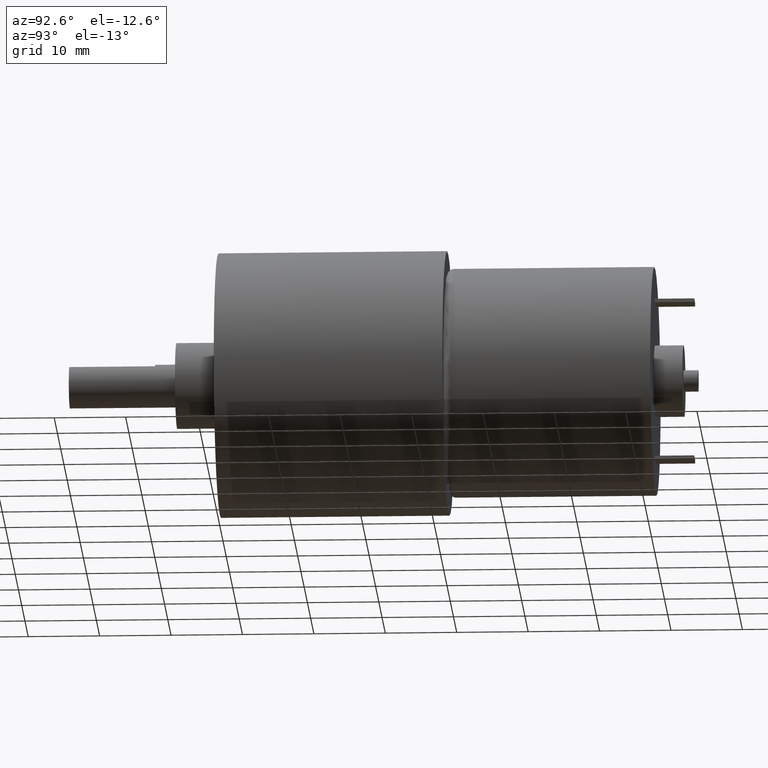
[diagram: clean part render]
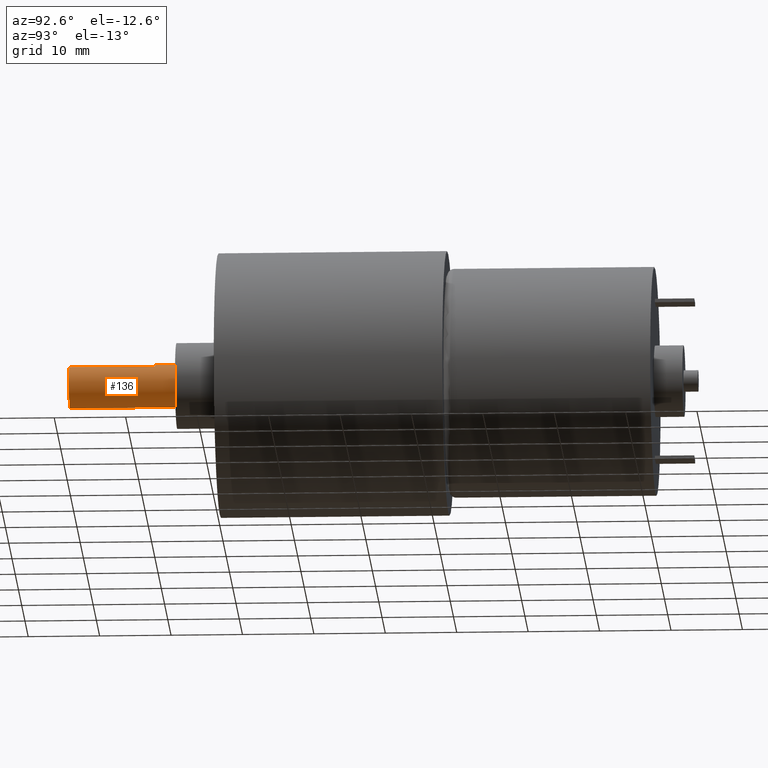
[diagram: same view with one face highlighted and labeled with its STEP entity id]
A machine part, auxiliary view. The second image highlights one B-rep face of the part: STEP entity #136.
In plain terms, the highlighted cylindrical surface (bore or boss wall) has radius 3 mm, axis along (-0, -1, 0).
Its self-contained STEP definition (entity closure, byte-faithful):
#136 = ADVANCED_FACE( '', ( #291, #292 ), #293, .T. );
#291 = FACE_OUTER_BOUND( '', #438, .T. );
#292 = FACE_OUTER_BOUND( '', #439, .T. );
#293 = CYLINDRICAL_SURFACE( '', #440, 3.00000000000000 );
#438 = EDGE_LOOP( '', ( #694, #695, #696, #697 ) );
#439 = EDGE_LOOP( '', ( #698 ) );
#440 = AXIS2_PLACEMENT_3D( '', #699, #700, #701 );
#694 = ORIENTED_EDGE( '', *, *, #788, .T. );
#695 = ORIENTED_EDGE( '', *, *, #769, .F. );
#696 = ORIENTED_EDGE( '', *, *, #783, .F. );
#697 = ORIENTED_EDGE( '', *, *, #767, .T. );
#698 = ORIENTED_EDGE( '', *, *, #709, .F. );
#699 = CARTESIAN_POINT( '', ( 0.000000000000000, 92.6621544602951, -1.08305661972314E-016 ) );
#700 = DIRECTION( '', ( -0.000000000000000, -1.00000000000000, 1.16882304974597E-018 ) );
#701 = DIRECTION( '', ( 0.000000000000000, 1.16882304974597E-018, 1.00000000000000 ) );
#709 = EDGE_CURVE( '', #806, #806, #807, .T. );
#767 = EDGE_CURVE( '', #898, #896, #899, .T. );
#769 = EDGE_CURVE( '', #900, #895, #902, .T. );
#783 = EDGE_CURVE( '', #898, #900, #919, .T. );
#788 = EDGE_CURVE( '', #896, #895, #924, .T. );
#806 = VERTEX_POINT( '', #946 );
#807 = CIRCLE( '', #947, 3.00000000000000 );
#895 = VERTEX_POINT( '', #1049 );
#896 = VERTEX_POINT( '', #1050 );
#898 = VERTEX_POINT( '', #1053 );
#899 = LINE( '', #1054, #1055 );
#900 = VERTEX_POINT( '', #1056 );
#902 = LINE( '', #1059, #1060 );
#919 = CIRCLE( '', #1083, 3.00000000000000 );
#924 = CIRCLE( '', #1088, 3.00000000000000 );
#946 = CARTESIAN_POINT( '', ( 0.000000000000000, -6.00000000000000, 3.00000000000000 ) );
#947 = AXIS2_PLACEMENT_3D( '', #1101, #1102, #1103 );
#1049 = CARTESIAN_POINT( '', ( -1.65831239517770, -21.0000000000000, 2.50000000000000 ) );
#1050 = CARTESIAN_POINT( '', ( 1.65831239517770, -21.0000000000000, 2.50000000000000 ) );
#1053 = CARTESIAN_POINT( '', ( 1.65831239517770, -9.00000000000000, 2.50000000000000 ) );
#1054 = CARTESIAN_POINT( '', ( 1.65831239517770, -9.00000000000000, 2.50000000000000 ) );
#1055 = VECTOR( '', #1182, 1000.00000000000 );
#1056 = CARTESIAN_POINT( '', ( -1.65831239517770, -9.00000000000000, 2.50000000000000 ) );
#1059 = CARTESIAN_POINT( '', ( -1.65831239517770, -9.00000000000000, 2.50000000000000 ) );
#1060 = VECTOR( '', #1184, 1000.00000000000 );
#1083 = AXIS2_PLACEMENT_3D( '', #1194, #1195, #1196 );
#1088 = AXIS2_PLACEMENT_3D( '', #1197, #1198, #1199 );
#1101 = CARTESIAN_POINT( '', ( 0.000000000000000, -6.00000000000000, 7.01293829847603E-018 ) );
#1102 = DIRECTION( '', ( 0.000000000000000, 1.00000000000000, -1.16882304974597E-018 ) );
#1103 = DIRECTION( '', ( 0.000000000000000, 1.16882304974597E-018, 1.00000000000000 ) );
#1182 = DIRECTION( '', ( 0.000000000000000, -1.00000000000000, 1.16882304974597E-018 ) );
#1184 = DIRECTION( '', ( 0.000000000000000, -1.00000000000000, 1.16882304974597E-018 ) );
#1194 = CARTESIAN_POINT( '', ( 0.000000000000000, -9.00000000000000, 1.05194074477139E-017 ) );
#1195 = DIRECTION( '', ( 0.000000000000000, -1.00000000000000, 1.16882304974597E-018 ) );
#1196 = DIRECTION( '', ( 1.00000000000000, 0.000000000000000, 0.000000000000000 ) );
#1197 = CARTESIAN_POINT( '', ( 0.000000000000000, -21.0000000000000, 2.45452840446656E-017 ) );
#1198 = DIRECTION( '', ( 0.000000000000000, 1.00000000000000, -1.16882304974597E-018 ) );
#1199 = DIRECTION( '', ( 0.000000000000000, 1.16882304974597E-018, 1.00000000000000 ) );